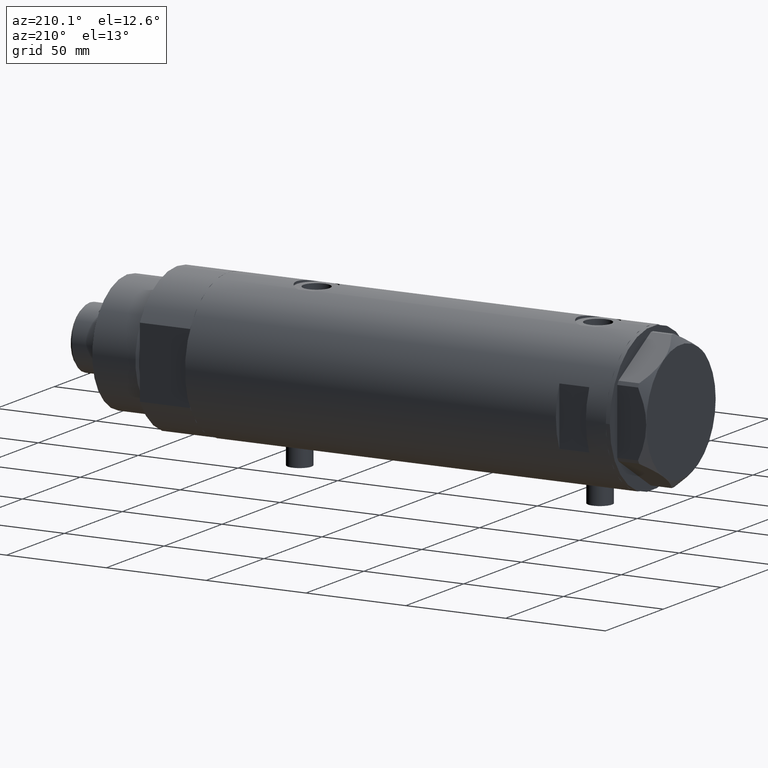
[diagram: clean part render]
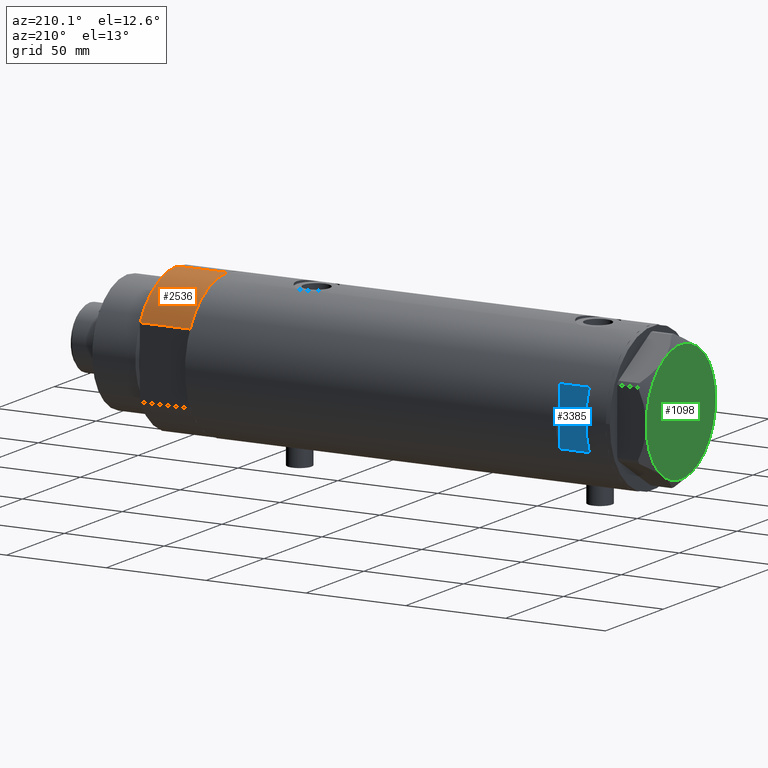
[diagram: same view with three faces highlighted in distinct colors, each labeled with its STEP entity id]
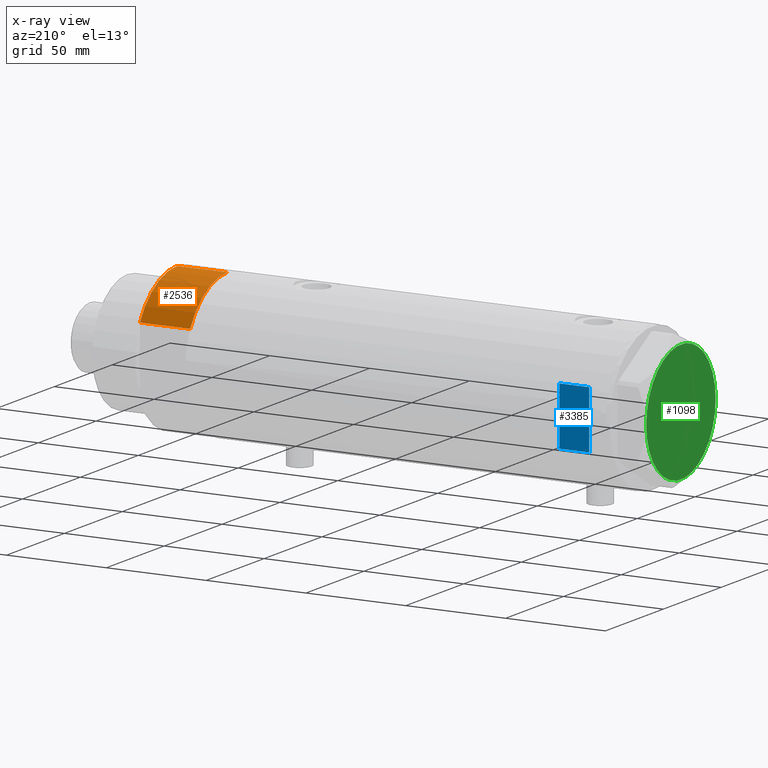
[diagram: x-ray of the same camera — body ghosted, the three highlighted faces saturated]
A machine part, auxiliary view with three faces highlighted in distinct colors.
The next image is the same camera in x-ray (body ghosted, the three faces saturated) — at least one of them is partly hidden behind the body in this view.
Their STEP definitions:

[orange] entity #2536 — the highlighted cylindrical surface (partial cylindrical patch) has radius 36.5 mm, axis along (-1, -0, 0).
#24 = LINE ( 'NONE', #66, #4366 ) ;
#52 = DIRECTION ( 'NONE',  ( 0.000000000000000000, 0.000000000000000000, 1.000000000000000000 ) ) ;
#66 = CARTESIAN_POINT ( 'NONE',  ( -36.50000000000000000, 0.000000000000000000, 25.19999999999999929 ) ) ;
#72 = FACE_OUTER_BOUND ( 'NONE', #767, .T. ) ;
#149 = AXIS2_PLACEMENT_3D ( 'NONE', #442, #4232, #2092 ) ;
#305 = VERTEX_POINT ( 'NONE', #1372 ) ;
#396 = CARTESIAN_POINT ( 'NONE',  ( -17.55704986607943141, 32.00000000000000000, 0.000000000000000000 ) ) ;
#433 = DIRECTION ( 'NONE',  ( -0.000000000000000000, -0.000000000000000000, -1.000000000000000000 ) ) ;
#442 = CARTESIAN_POINT ( 'NONE',  ( 0.000000000000000000, 0.000000000000000000, 25.19999999999999929 ) ) ;
#449 = DIRECTION ( 'NONE',  ( -1.000000000000000000, 0.000000000000000000, 0.000000000000000000 ) ) ;
#465 = EDGE_CURVE ( 'NONE', #1260, #2912, #4147, .T. ) ;
#533 = EDGE_CURVE ( 'NONE', #1260, #305, #4454, .T. ) ;
#767 = EDGE_LOOP ( 'NONE', ( #2037, #3642, #1307, #4042 ) ) ;
#1222 = VECTOR ( 'NONE', #1730, 1000.000000000000000 ) ;
#1260 = VERTEX_POINT ( 'NONE', #1784 ) ;
#1307 = ORIENTED_EDGE ( 'NONE', *, *, #465, .F. ) ;
#1372 = CARTESIAN_POINT ( 'NONE',  ( -36.50000000000000000, 0.000000000000000000, 0.000000000000000000 ) ) ;
#1459 = DIRECTION ( 'NONE',  ( 1.000000000000000000, 0.000000000000000000, 0.000000000000000000 ) ) ;
#1730 = DIRECTION ( 'NONE',  ( -0.000000000000000000, -0.000000000000000000, 1.000000000000000000 ) ) ;
#1784 = CARTESIAN_POINT ( 'NONE',  ( -17.55704986607943141, 32.00000000000000000, 0.000000000000000000 ) ) ;
#1861 = CARTESIAN_POINT ( 'NONE',  ( -36.50000000000000000, 0.000000000000000000, 25.19999999999999929 ) ) ;
#2014 = VERTEX_POINT ( 'NONE', #1861 ) ;
#2037 = ORIENTED_EDGE ( 'NONE', *, *, #4203, .F. ) ;
#2092 = DIRECTION ( 'NONE',  ( 1.000000000000000000, 0.000000000000000000, 0.000000000000000000 ) ) ;
#2495 = AXIS2_PLACEMENT_3D ( 'NONE', #3166, #52, #1459 ) ;
#2536 = ADVANCED_FACE ( 'NONE', ( #72 ), #2852, .T. ) ;
#2758 = EDGE_CURVE ( 'NONE', #2912, #2014, #3275, .T. ) ;
#2852 = CYLINDRICAL_SURFACE ( 'NONE', #4467, 36.50000000000000000 ) ;
#2912 = VERTEX_POINT ( 'NONE', #3121 ) ;
#3121 = CARTESIAN_POINT ( 'NONE',  ( -17.55704986607943496, 32.00000000000000000, 25.19999999999999929 ) ) ;
#3166 = CARTESIAN_POINT ( 'NONE',  ( 0.000000000000000000, 0.000000000000000000, 0.000000000000000000 ) ) ;
#3275 = CIRCLE ( 'NONE', #149, 36.50000000000000000 ) ;
#3483 = DIRECTION ( 'NONE',  ( -0.000000000000000000, -0.000000000000000000, -1.000000000000000000 ) ) ;
#3642 = ORIENTED_EDGE ( 'NONE', *, *, #2758, .F. ) ;
#4042 = ORIENTED_EDGE ( 'NONE', *, *, #533, .T. ) ;
#4147 = LINE ( 'NONE', #396, #1222 ) ;
#4203 = EDGE_CURVE ( 'NONE', #2014, #305, #24, .T. ) ;
#4225 = CARTESIAN_POINT ( 'NONE',  ( 0.000000000000000000, 0.000000000000000000, 25.19999999999999929 ) ) ;
#4232 = DIRECTION ( 'NONE',  ( 0.000000000000000000, 0.000000000000000000, 1.000000000000000000 ) ) ;
#4366 = VECTOR ( 'NONE', #433, 1000.000000000000000 ) ;
#4454 = CIRCLE ( 'NONE', #2495, 36.50000000000000000 ) ;
#4467 = AXIS2_PLACEMENT_3D ( 'NONE', #4225, #3483, #449 ) ;

[blue] entity #3385 — the highlighted planar face has unit normal (0, -1, -0).
#33 = DIRECTION ( 'NONE',  ( 1.000000000000000000, -0.000000000000000000, -0.000000000000000000 ) ) ;
#43 = CARTESIAN_POINT ( 'NONE',  ( -36.50000000000000000, 33.50000000000000000, 95.40000000000001990 ) ) ;
#46 = VERTEX_POINT ( 'NONE', #1334 ) ;
#115 = VERTEX_POINT ( 'NONE', #3876 ) ;
#303 = EDGE_LOOP ( 'NONE', ( #661, #2550, #2645, #896 ) ) ;
#353 = CARTESIAN_POINT ( 'NONE',  ( -36.50000000000000000, 33.50000000000000000, 95.40000000000001990 ) ) ;
#381 = DIRECTION ( 'NONE',  ( 1.000000000000000000, -0.000000000000000000, -0.000000000000000000 ) ) ;
#661 = ORIENTED_EDGE ( 'NONE', *, *, #712, .T. ) ;
#712 = EDGE_CURVE ( 'NONE', #115, #46, #4468, .T. ) ;
#825 = AXIS2_PLACEMENT_3D ( 'NONE', #43, #2184, #3173 ) ;
#896 = ORIENTED_EDGE ( 'NONE', *, *, #2974, .T. ) ;
#1133 = PLANE ( 'NONE',  #825 ) ;
#1153 = VERTEX_POINT ( 'NONE', #1171 ) ;
#1171 = CARTESIAN_POINT ( 'NONE',  ( -14.49137674618942562, 33.50000000000000000, 80.40000000000003411 ) ) ;
#1294 = EDGE_CURVE ( 'NONE', #1153, #46, #1752, .T. ) ;
#1334 = CARTESIAN_POINT ( 'NONE',  ( 14.49137674618942384, 33.50000000000000000, 80.40000000000003411 ) ) ;
#1455 = FACE_OUTER_BOUND ( 'NONE', #303, .T. ) ;
#1504 = VECTOR ( 'NONE', #4086, 1000.000000000000000 ) ;
#1611 = CARTESIAN_POINT ( 'NONE',  ( -14.49137674618942739, 33.50000000000000000, 95.40000000000001990 ) ) ;
#1752 = LINE ( 'NONE', #2456, #3591 ) ;
#2184 = DIRECTION ( 'NONE',  ( 0.000000000000000000, -1.000000000000000000, -0.000000000000000000 ) ) ;
#2456 = CARTESIAN_POINT ( 'NONE',  ( -36.50000000000000000, 33.50000000000000000, 80.40000000000003411 ) ) ;
#2550 = ORIENTED_EDGE ( 'NONE', *, *, #1294, .F. ) ;
#2597 = DIRECTION ( 'NONE',  ( 0.000000000000000000, 0.000000000000000000, 1.000000000000000000 ) ) ;
#2620 = EDGE_CURVE ( 'NONE', #1153, #3223, #3627, .T. ) ;
#2645 = ORIENTED_EDGE ( 'NONE', *, *, #2620, .T. ) ;
#2974 = EDGE_CURVE ( 'NONE', #3223, #115, #3144, .T. ) ;
#3049 = CARTESIAN_POINT ( 'NONE',  ( 14.49137674618942562, 33.50000000000000000, -105.4000000000000057 ) ) ;
#3065 = VECTOR ( 'NONE', #33, 1000.000000000000000 ) ;
#3144 = LINE ( 'NONE', #353, #3065 ) ;
#3173 = DIRECTION ( 'NONE',  ( 0.000000000000000000, 0.000000000000000000, -1.000000000000000000 ) ) ;
#3223 = VERTEX_POINT ( 'NONE', #1611 ) ;
#3231 = VECTOR ( 'NONE', #2597, 1000.000000000000000 ) ;
#3385 = ADVANCED_FACE ( 'NONE', ( #1455 ), #1133, .F. ) ;
#3577 = CARTESIAN_POINT ( 'NONE',  ( -14.49137674618942562, 33.50000000000000000, -105.4000000000000057 ) ) ;
#3591 = VECTOR ( 'NONE', #381, 1000.000000000000000 ) ;
#3627 = LINE ( 'NONE', #3577, #3231 ) ;
#3876 = CARTESIAN_POINT ( 'NONE',  ( 14.49137674618942739, 33.50000000000000000, 95.40000000000001990 ) ) ;
#4086 = DIRECTION ( 'NONE',  ( -0.000000000000000000, -0.000000000000000000, -1.000000000000000000 ) ) ;
#4468 = LINE ( 'NONE', #3049, #1504 ) ;

[green] entity #1098 — the highlighted planar face has unit normal (-1, -0, 0).
#219 = CARTESIAN_POINT ( 'NONE',  ( 0.000000000000000000, 0.000000000000000000, 14.50000000000000000 ) ) ;
#369 = VERTEX_POINT ( 'NONE', #1554 ) ;
#380 = EDGE_CURVE ( 'NONE', #2055, #873, #3945, .T. ) ;
#672 = DIRECTION ( 'NONE',  ( 1.000000000000000000, 0.000000000000000000, 0.000000000000000000 ) ) ;
#741 = CARTESIAN_POINT ( 'NONE',  ( 0.000000000000000000, 0.000000000000000000, 14.50000000000000000 ) ) ;
#873 = VERTEX_POINT ( 'NONE', #1510 ) ;
#956 = CARTESIAN_POINT ( 'NONE',  ( 14.99999999999998757, -25.98076211353316722, 14.50000000000000000 ) ) ;
#959 = ORIENTED_EDGE ( 'NONE', *, *, #380, .T. ) ;
#1005 = DIRECTION ( 'NONE',  ( 0.000000000000000000, 0.000000000000000000, 1.000000000000000000 ) ) ;
#1098 = ADVANCED_FACE ( 'NONE', ( #1798 ), #2641, .T. ) ;
#1296 = DIRECTION ( 'NONE',  ( 0.000000000000000000, 0.000000000000000000, 1.000000000000000000 ) ) ;
#1335 = DIRECTION ( 'NONE',  ( 0.000000000000000000, 0.000000000000000000, 1.000000000000000000 ) ) ;
#1360 = EDGE_CURVE ( 'NONE', #3704, #2216, #3383, .T. ) ;
#1510 = CARTESIAN_POINT ( 'NONE',  ( -14.99999999999999645, -25.98076211353316367, 14.50000000000000000 ) ) ;
#1515 = ORIENTED_EDGE ( 'NONE', *, *, #3080, .T. ) ;
#1535 = DIRECTION ( 'NONE',  ( 0.000000000000000000, 0.000000000000000000, 1.000000000000000000 ) ) ;
#1554 = CARTESIAN_POINT ( 'NONE',  ( 30.00000000000000000, 9.013887592422954582E-15, 14.50000000000000000 ) ) ;
#1655 = AXIS2_PLACEMENT_3D ( 'NONE', #1839, #3941, #2901 ) ;
#1657 = CARTESIAN_POINT ( 'NONE',  ( -14.99999999999999645, 25.98076211353316367, 14.50000000000000000 ) ) ;
#1662 = AXIS2_PLACEMENT_3D ( 'NONE', #3037, #1335, #1676 ) ;
#1676 = DIRECTION ( 'NONE',  ( 1.000000000000000000, 0.000000000000000000, 0.000000000000000000 ) ) ;
#1715 = AXIS2_PLACEMENT_3D ( 'NONE', #219, #1296, #672 ) ;
#1728 = CIRCLE ( 'NONE', #1662, 30.00000000000000000 ) ;
#1755 = CIRCLE ( 'NONE', #3351, 30.00000000000000000 ) ;
#1798 = FACE_OUTER_BOUND ( 'NONE', #4111, .T. ) ;
#1839 = CARTESIAN_POINT ( 'NONE',  ( 0.000000000000000000, 0.000000000000000000, 14.50000000000000000 ) ) ;
#1998 = DIRECTION ( 'NONE',  ( 1.000000000000000000, 0.000000000000000000, -0.000000000000000000 ) ) ;
#2053 = AXIS2_PLACEMENT_3D ( 'NONE', #4135, #1005, #2414 ) ;
#2055 = VERTEX_POINT ( 'NONE', #2976 ) ;
#2211 = ORIENTED_EDGE ( 'NONE', *, *, #2949, .T. ) ;
#2216 = VERTEX_POINT ( 'NONE', #1657 ) ;
#2219 = EDGE_CURVE ( 'NONE', #873, #2484, #1728, .T. ) ;
#2414 = DIRECTION ( 'NONE',  ( 1.000000000000000000, 0.000000000000000000, 0.000000000000000000 ) ) ;
#2419 = AXIS2_PLACEMENT_3D ( 'NONE', #741, #2466, #3447 ) ;
#2466 = DIRECTION ( 'NONE',  ( 0.000000000000000000, 0.000000000000000000, 1.000000000000000000 ) ) ;
#2484 = VERTEX_POINT ( 'NONE', #956 ) ;
#2503 = AXIS2_PLACEMENT_3D ( 'NONE', #2529, #4050, #1998 ) ;
#2529 = CARTESIAN_POINT ( 'NONE',  ( 0.000000000000000000, 0.000000000000000000, 14.50000000000000000 ) ) ;
#2641 = PLANE ( 'NONE',  #2503 ) ;
#2699 = EDGE_CURVE ( 'NONE', #2484, #369, #3132, .T. ) ;
#2768 = ORIENTED_EDGE ( 'NONE', *, *, #1360, .T. ) ;
#2901 = DIRECTION ( 'NONE',  ( 1.000000000000000000, 0.000000000000000000, 0.000000000000000000 ) ) ;
#2913 = CIRCLE ( 'NONE', #2419, 30.00000000000000000 ) ;
#2949 = EDGE_CURVE ( 'NONE', #369, #3704, #2913, .T. ) ;
#2976 = CARTESIAN_POINT ( 'NONE',  ( -30.00000000000000000, 0.000000000000000000, 14.50000000000000000 ) ) ;
#3037 = CARTESIAN_POINT ( 'NONE',  ( 0.000000000000000000, 0.000000000000000000, 14.50000000000000000 ) ) ;
#3080 = EDGE_CURVE ( 'NONE', #2216, #2055, #1755, .T. ) ;
#3132 = CIRCLE ( 'NONE', #2053, 30.00000000000000000 ) ;
#3196 = CARTESIAN_POINT ( 'NONE',  ( 0.000000000000000000, 0.000000000000000000, 14.50000000000000000 ) ) ;
#3351 = AXIS2_PLACEMENT_3D ( 'NONE', #3196, #1535, #4275 ) ;
#3383 = CIRCLE ( 'NONE', #1655, 30.00000000000000000 ) ;
#3447 = DIRECTION ( 'NONE',  ( 1.000000000000000000, 0.000000000000000000, 0.000000000000000000 ) ) ;
#3608 = CARTESIAN_POINT ( 'NONE',  ( 14.99999999999999467, 25.98076211353316367, 14.50000000000000000 ) ) ;
#3704 = VERTEX_POINT ( 'NONE', #3608 ) ;
#3882 = ORIENTED_EDGE ( 'NONE', *, *, #2219, .T. ) ;
#3941 = DIRECTION ( 'NONE',  ( 0.000000000000000000, 0.000000000000000000, 1.000000000000000000 ) ) ;
#3945 = CIRCLE ( 'NONE', #1715, 30.00000000000000000 ) ;
#4050 = DIRECTION ( 'NONE',  ( 0.000000000000000000, 0.000000000000000000, 1.000000000000000000 ) ) ;
#4111 = EDGE_LOOP ( 'NONE', ( #4392, #2211, #2768, #1515, #959, #3882 ) ) ;
#4135 = CARTESIAN_POINT ( 'NONE',  ( 0.000000000000000000, 0.000000000000000000, 14.50000000000000000 ) ) ;
#4275 = DIRECTION ( 'NONE',  ( 1.000000000000000000, 0.000000000000000000, 0.000000000000000000 ) ) ;
#4392 = ORIENTED_EDGE ( 'NONE', *, *, #2699, .T. ) ;